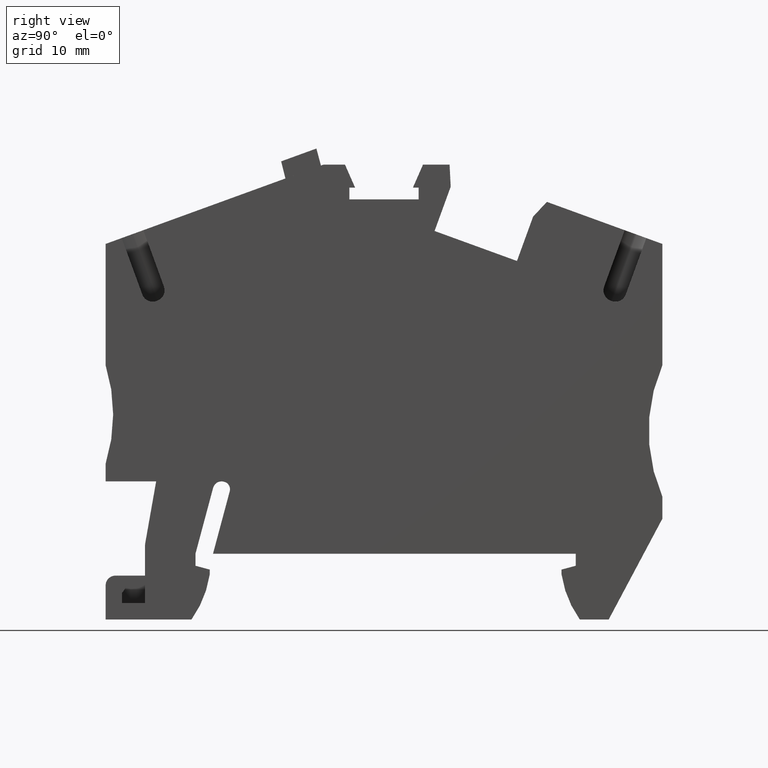
[diagram: clean part render]
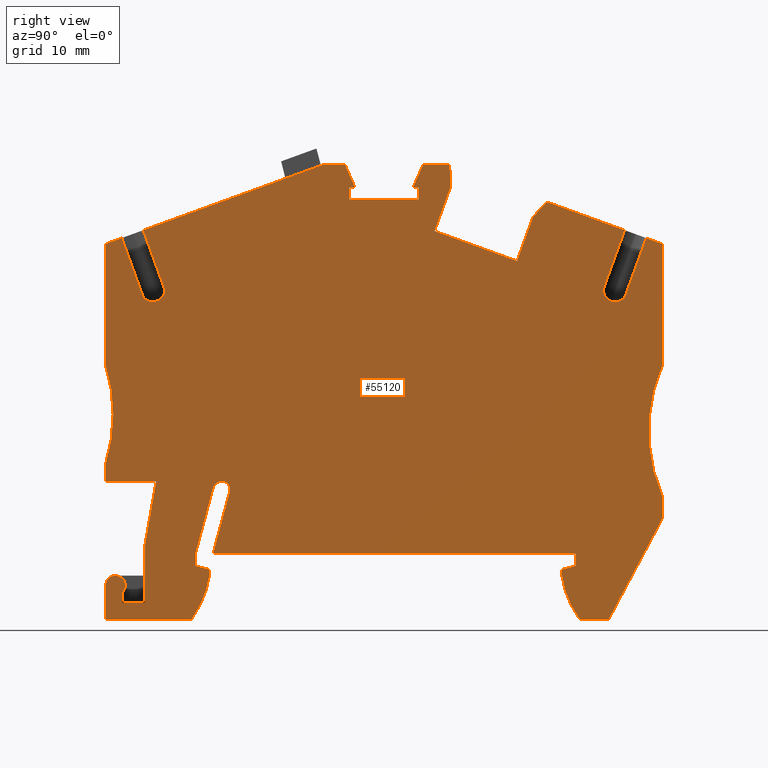
[diagram: same view with one face highlighted and labeled with its STEP entity id]
A machine part, right view. The second image highlights one B-rep face of the part: STEP entity #55120.
In plain terms, the highlighted planar face has unit normal (-1, -0, 0).
Its self-contained STEP definition (entity closure, byte-faithful):
#100=CARTESIAN_POINT('',(-1.29999999999927,-1.4483339501603,
-1.42589696079272E-10));
#110=VERTEX_POINT('',#100);
#280=CARTESIAN_POINT('',(0.,-1.10000000000036,-1.42495430504103E-10));
#290=VERTEX_POINT('',#280);
#320=CARTESIAN_POINT('',(0.,-1.10000000000036,0.));
#330=DIRECTION('',(0.965925826289129,0.258819045102296,0.));
#340=VECTOR('',#330,1.);
#350=LINE('',#320,#340);
#360=EDGE_CURVE('',#110,#290,#350,.T.);
#1120=CARTESIAN_POINT('',(-39.3000000000014,0.774101334896841,
-1.38149359674055E-10));
#1130=VERTEX_POINT('',#1120);
#1310=CARTESIAN_POINT('',(-39.2848077530129,0.947749512562956,
-1.38049892836044E-10));
#1320=VERTEX_POINT('',#1310);
#1350=CARTESIAN_POINT('',(-38.3000000000005,0.774101334896841,0.));
#1360=DIRECTION('',(0.,0.,1.));
#1370=DIRECTION('',(1.,0.,0.));
#1380=AXIS2_PLACEMENT_3D('',#1350,#1360,#1370);
#1390=CIRCLE('',#1380,0.999999999998985);
#1400=EDGE_CURVE('',#1320,#1130,#1390,.T.);
#2750=CARTESIAN_POINT('',(-39.4598647320137,29.5152964901606,
-1.21465675621189E-10));
#2760=VERTEX_POINT('',#2750);
#2790=CARTESIAN_POINT('',(-28.7171753540537,0.,-1.39475972340932E-10));
#2800=DIRECTION('',(0.342020143325669,-0.939692620785908,
-5.73402436643278E-13));
#2810=VECTOR('',#2800,1.);
#2820=LINE('',#2790,#2810);
#2830=CARTESIAN_POINT('',(-37.5806273772337,24.3521342921046,
-1.24616248180409E-10));
#2840=VERTEX_POINT('',#2830);
#2850=EDGE_CURVE('',#2760,#2840,#2820,.T.);
#7400=CARTESIAN_POINT('',(-2.64092282074495,32.099771799215,
-1.23017726816129E-10));
#7410=VERTEX_POINT('',#7400);
#7460=CARTESIAN_POINT('',(-32.4815657489445,0.,-1.39163807279348E-10));
#7470=DIRECTION('',(0.680864038377509,0.73240983147707,
3.68399755146243E-13));
#7480=VECTOR('',#7470,1.);
#7490=LINE('',#7460,#7480);
#7500=CARTESIAN_POINT('',(-3.89752594864123,30.7480357208503,
-1.23699953515012E-10));
#7510=VERTEX_POINT('',#7500);
#7520=EDGE_CURVE('',#7510,#7410,#7490,.T.);
#10200=CARTESIAN_POINT('',(0.,0.,-1.41857366902207E-10));
#10210=DIRECTION('',(-1.,0.,8.29257937772377E-14));
#10220=VECTOR('',#10210,1.);
#10230=LINE('',#10200,#10220);
#10240=CARTESIAN_POINT('',(0.,0.,-1.41857366902207E-10));
#10250=VERTEX_POINT('',#10240);
#10260=CARTESIAN_POINT('',(-33.0999999999996,0.,-1.3911252312818E-10));
#10270=VERTEX_POINT('',#10260);
#10280=EDGE_CURVE('',#10250,#10270,#10230,.T.);
#12500=CARTESIAN_POINT('',(6.19595393837592,0.,-1.42371171300754E-10));
#12510=DIRECTION('',(-0.470025375689051,-0.882652902452808,
-4.72982764065932E-13));
#12520=VECTOR('',#12510,1.);
#12530=LINE('',#12500,#12520);
#12540=CARTESIAN_POINT('',(7.89999999999907,3.19999999999997,
-1.40656403422231E-10));
#12550=VERTEX_POINT('',#12540);
#12560=CARTESIAN_POINT('',(3.00086757283249,-6.,-1.45586563147137E-10));
#12570=VERTEX_POINT('',#12560);
#12580=EDGE_CURVE('',#12550,#12570,#12530,.T.);
#12970=CARTESIAN_POINT('',(-5.45900074409302,0.,-1.41404674932272E-10));
#12980=DIRECTION('',(0.402320578210114,-0.915498854367759,
-5.64381874568198E-13));
#12990=VECTOR('',#12980,1.);
#13000=LINE('',#12970,#12990);
#13010=CARTESIAN_POINT('',(-21.0596543749732,35.5,-1.19519823354814E-10)
);
#13020=VERTEX_POINT('',#13010);
#13030=CARTESIAN_POINT('',(-20.1346015329186,33.3950000000041,
-1.20817502582151E-10));
#13040=VERTEX_POINT('',#13030);
#13050=EDGE_CURVE('',#13020,#13040,#13000,.T.);
#15940=CARTESIAN_POINT('',(-31.5717121730659,5.70364781871285,
-1.35769650966269E-10));
#15950=VERTEX_POINT('',#15940);
#15980=CARTESIAN_POINT('',(-33.0999999999996,0.,-1.3911252312818E-10));
#15990=DIRECTION('',(0.258819045102212,0.965925826289151,
5.38791233850588E-13));
#16000=VECTOR('',#15990,1.);
#16010=LINE('',#15980,#16000);
#16020=EDGE_CURVE('',#10270,#15950,#16010,.T.);
#17270=CARTESIAN_POINT('',(0.,0.,0.));
#17280=DIRECTION('',(0.,1.,0.));
#17290=VECTOR('',#17280,1.);
#17300=LINE('',#17270,#17290);
#17310=EDGE_CURVE('',#290,#10250,#17300,.T.);
#17540=CARTESIAN_POINT('',(4.45986473201246,29.5152964901623,
-1.25107999446172E-10));
#17550=VERTEX_POINT('',#17540);
#17700=CARTESIAN_POINT('',(2.58062737722511,24.3521342920906,
-1.27946854579047E-10));
#17710=VERTEX_POINT('',#17700);
#17740=CARTESIAN_POINT('',(-6.28282464594988,0.,-1.41336358681278E-10));
#17750=DIRECTION('',(-0.342020143325669,-0.939692620785908,
-5.16697795660548E-13));
#17760=VECTOR('',#17750,1.);
#17770=LINE('',#17740,#17760);
#17780=EDGE_CURVE('',#17550,#17710,#17770,.T.);
#20130=CARTESIAN_POINT('',(-42.8999999999979,17.1999999999899,
-1.28322855846794E-10));
#20140=VERTEX_POINT('',#20130);
#20290=CARTESIAN_POINT('',(-42.9000000000009,28.2631896507639,
-1.21905223592938E-10));
#20300=VERTEX_POINT('',#20290);
#20330=CARTESIAN_POINT('',(-42.8999999999933,0.,-1.38299850349164E-10));
#20340=DIRECTION('',(2.67952326993282E-13,-1.,-5.80057819905538E-13));
#20350=VECTOR('',#20340,1.);
#20360=LINE('',#20330,#20350);
#20370=EDGE_CURVE('',#20300,#20140,#20360,.T.);
#21560=CARTESIAN_POINT('',(-38.1782998554556,23.070421527716,
-1.25309132256178E-10));
#21570=VERTEX_POINT('',#21560);
#22590=CARTESIAN_POINT('',(-38.2881634903552,6.600000000004,
-1.34853904179335E-10));
#22600=VERTEX_POINT('',#22590);
#22750=CARTESIAN_POINT('',(-42.9,6.600000000004,-1.34471468737784E-10));
#22760=VERTEX_POINT('',#22750);
#22790=CARTESIAN_POINT('',(0.,6.600000000004,-1.38028985290828E-10));
#22800=DIRECTION('',(-1.,0.,8.29257937772377E-14));
#22810=VECTOR('',#22800,1.);
#22820=LINE('',#22790,#22810);
#22830=EDGE_CURVE('',#22600,#22760,#22820,.T.);
#25860=CARTESIAN_POINT('',(-42.9000000000004,-6.,-1.41780197268596E-10))
;
#25870=VERTEX_POINT('',#25860);
#26020=CARTESIAN_POINT('',(-42.9,-2.89999999999925,-1.40056651241288E-10
));
#26030=VERTEX_POINT('',#26020);
#26060=CARTESIAN_POINT('',(-42.8999999999978,0.,-1.38299850349163E-10));
#26070=DIRECTION('',(4.33092715129891E-13,1.,5.8005781990548E-13));
#26080=VECTOR('',#26070,1.);
#26090=LINE('',#26060,#26080);
#26100=EDGE_CURVE('',#25870,#26030,#26090,.T.);
#28120=CARTESIAN_POINT('',(-38.5203199980197,24.0101141487791,
-1.24736602610164E-10));
#28130=DIRECTION('',(-1.95827564400544E-13,5.38964936002669E-13,-1.));
#28140=DIRECTION('',(0.,-1.,-5.38964936002669E-13));
#28150=AXIS2_PLACEMENT_3D('',#28120,#28130,#28140);
#28160=CIRCLE('',#28150,1.);
#28170=EDGE_CURVE('',#2840,#21570,#28160,.T.);
#28350=CARTESIAN_POINT('',(0.,35.5,-1.21265314295561E-10));
#28360=DIRECTION('',(1.,0.,-8.29257937772377E-14));
#28370=VECTOR('',#28360,1.);
#28380=LINE('',#28350,#28370);
#28390=CARTESIAN_POINT('',(-13.9403456250286,35.5,-1.2011015492028E-10))
;
#28400=VERTEX_POINT('',#28390);
#28410=CARTESIAN_POINT('',(-11.5175781191445,35.5000000000002,
-1.20310264351358E-10));
#28420=VERTEX_POINT('',#28410);
#28430=EDGE_CURVE('',#28400,#28420,#28380,.T.);
#28870=CARTESIAN_POINT('',(-38.2722691167721,23.0362195136608,
-9.82363376605802E-13));
#28880=VERTEX_POINT('',#28870);
#33410=CARTESIAN_POINT('',(-42.9,8.20000000000002,-1.33543376225938E-10)
);
#33420=VERTEX_POINT('',#33410);
#33450=CARTESIAN_POINT('',(-42.9,0.,-1.38299850349163E-10));
#33460=DIRECTION('',(0.,1.,5.80057819905516E-13));
#33470=VECTOR('',#33460,1.);
#33480=LINE('',#33450,#33470);
#33490=EDGE_CURVE('',#22760,#33420,#33480,.T.);
#33720=CARTESIAN_POINT('',(7.89999999999907,17.1999999999987,
-1.32535486170673E-10));
#33730=VERTEX_POINT('',#33720);
#33890=CARTESIAN_POINT('',(7.89999999999906,5.19999999999878,
-1.37155874271251E-10));
#33900=VERTEX_POINT('',#33890);
#33930=CARTESIAN_POINT('',(21.6477270848666,11.1999999999987,0.));
#33940=DIRECTION('',(0.,0.,1.));
#33950=DIRECTION('',(1.,0.,0.));
#33960=AXIS2_PLACEMENT_3D('',#33930,#33940,#33950);
#33970=CIRCLE('',#33960,15.);
#33980=EDGE_CURVE('',#33730,#33900,#33970,.T.);
#35760=CARTESIAN_POINT('',(-41.4000000000009,-4.49999999999809,
-1.41034499229403E-10));
#35770=VERTEX_POINT('',#35760);
#35940=CARTESIAN_POINT('',(-39.3000000000014,-4.49999999999809,
-1.41208643396335E-10));
#35950=VERTEX_POINT('',#35940);
#35980=CARTESIAN_POINT('',(0.,-4.4999999999981,-1.44469824703714E-10));
#35990=DIRECTION('',(1.,-1.11022302462522E-16,-8.29257937772378E-14));
#36000=VECTOR('',#35990,1.);
#36010=LINE('',#35980,#36000);
#36020=EDGE_CURVE('',#35770,#35950,#36010,.T.);
#36230=CARTESIAN_POINT('',(-34.6999999999999,-1.10000000000033,
-1.39617323468595E-10));
#36240=VERTEX_POINT('',#36230);
#36410=CARTESIAN_POINT('',(-33.3999999999998,-1.44833395016027,
-1.39927202635948E-10));
#36420=VERTEX_POINT('',#36410);
#36450=CARTESIAN_POINT('',(0.,-10.3978369773451,0.));
#36460=DIRECTION('',(0.965925826289174,-0.258819045102127,0.));
#36470=VECTOR('',#36460,1.);
#36480=LINE('',#36450,#36470);
#36490=EDGE_CURVE('',#36240,#36420,#36480,.T.);
#36720=CARTESIAN_POINT('',(3.17829985773621,23.0704215268684,
-1.28738766468E-10));
#36730=VERTEX_POINT('',#36720);
#38040=CARTESIAN_POINT('',(-41.3999999999995,-3.57082039324835,
-1.40056651241288E-10));
#38050=VERTEX_POINT('',#38040);
#38080=CARTESIAN_POINT('',(-42.0000000000004,-2.89999999999964,0.));
#38090=DIRECTION('',(0.,0.,1.));
#38100=DIRECTION('',(1.,0.,0.));
#38110=AXIS2_PLACEMENT_3D('',#38080,#38090,#38100);
#38120=CIRCLE('',#38110,0.899999999999636);
#38130=EDGE_CURVE('',#38050,#26030,#38120,.T.);
#41780=CARTESIAN_POINT('',(7.89999999999907,28.2631896507653,
-1.26118196500648E-10));
#41790=VERTEX_POINT('',#41780);
#41820=CARTESIAN_POINT('',(4.45986473201246,29.5152964901623,0.));
#41830=DIRECTION('',(0.939692620785863,-0.342020143325795,
-1.29589460855335E-12));
#41840=VECTOR('',#41830,1.);
#41850=LINE('',#41820,#41840);
#41860=CARTESIAN_POINT('',(6.43321923566216,28.7970541891783,
-1.25688230080437E-10));
#41870=VERTEX_POINT('',#41860);
#41880=EDGE_CURVE('',#41870,#41790,#41850,.T.);
#42140=CARTESIAN_POINT('',(0.,31.1385545014691,-1.23795204863075E-10));
#42150=DIRECTION('',(0.939692620785863,-0.342020143325795,
-2.76334510829201E-13));
#42160=VECTOR('',#42150,1.);
#42170=LINE('',#42140,#42160);
#42180=EDGE_CURVE('',#7410,#17550,#42170,.T.);
#43010=CARTESIAN_POINT('',(-14.8653984670832,33.3950000000041,
-1.21254415200901E-10));
#43020=VERTEX_POINT('',#43010);
#43070=CARTESIAN_POINT('',(0.,33.3950000000041,-1.22486336006459E-10));
#43080=DIRECTION('',(1.,0.,-8.29257937772377E-14));
#43090=VECTOR('',#43080,1.);
#43100=LINE('',#43070,#43090);
#43110=CARTESIAN_POINT('',(-14.3374999999996,33.3950000000041,
-1.21297387438178E-10));
#43120=VERTEX_POINT('',#43110);
#43130=EDGE_CURVE('',#43020,#43120,#43100,.T.);
#43480=CARTESIAN_POINT('',(-32.088008884186,6.56632503169182,
-1.35769650966269E-10));
#43490=VERTEX_POINT('',#43480);
#43670=CARTESIAN_POINT('',(-33.0904144006021,6.00705523608288,
-1.35813062798866E-10));
#43680=VERTEX_POINT('',#43670);
#43710=CARTESIAN_POINT('',(-32.3176737395706,5.80000000000109,0.));
#43720=DIRECTION('',(0.,0.,1.));
#43730=DIRECTION('',(1.,0.,0.));
#43740=AXIS2_PLACEMENT_3D('',#43710,#43720,#43730);
#43750=CIRCLE('',#43740,0.800000000000103);
#43760=EDGE_CURVE('',#43490,#43680,#43750,.T.);
#43920=CARTESIAN_POINT('',(-39.553981880959,23.6338919913267,
-1.24868297693306E-10));
#43930=VERTEX_POINT('',#43920);
#43970=CARTESIAN_POINT('',(-38.614289260173,23.9759121346521,
-1.2474783099109E-10));
#43980=DIRECTION('',(8.29257937772377E-14,-5.80057819905516E-13,1.));
#43990=DIRECTION('',(0.939692620785946,0.342020143325567,
1.20466702215913E-13));
#44000=AXIS2_PLACEMENT_3D('',#43970,#43980,#43990);
#44010=CIRCLE('',#44000,1.);
#44020=EDGE_CURVE('',#43930,#28880,#44010,.T.);
#44860=CARTESIAN_POINT('',(0.358943653132053,-6.,-1.45367479508997E-10))
;
#44870=VERTEX_POINT('',#44860);
#45030=CARTESIAN_POINT('',(-1.30000000000111,-1.89999999999953,
-1.42809678395399E-10));
#45040=VERTEX_POINT('',#45030);
#45070=CARTESIAN_POINT('',(8.09397267937675,-0.48462821170142,
-1.42809678395399E-10));
#45080=DIRECTION('',(0.,0.,1.));
#45090=DIRECTION('',(1.,0.,0.));
#45100=AXIS2_PLACEMENT_3D('',#45070,#45080,#45090);
#45110=CIRCLE('',#45100,9.50000000000041);
#45120=EDGE_CURVE('',#45040,#44870,#45110,.T.);
#47310=CARTESIAN_POINT('',(-15.0888957131847,0.,0.));
#47320=DIRECTION('',(0.34202014332567,0.939692620785908,0.));
#47330=VECTOR('',#47320,1.);
#47340=LINE('',#47310,#47330);
#47350=CARTESIAN_POINT('',(-5.3682125649411,26.7073574514723,
-1.25921634687376E-10));
#47360=VERTEX_POINT('',#47350);
#47370=EDGE_CURVE('',#47360,#7510,#47340,.T.);
#48110=CARTESIAN_POINT('',(-34.6999999999998,9.09561053310533E-12,
-1.38979841858131E-10));
#48120=VERTEX_POINT('',#48110);
#48150=CARTESIAN_POINT('',(-34.7000000000023,0.,0.));
#48160=DIRECTION('',(-0.258819045102824,-0.965925826288987,0.));
#48170=VECTOR('',#48160,1.);
#48180=LINE('',#48150,#48170);
#48190=EDGE_CURVE('',#43680,#48120,#48180,.T.);
#49210=CARTESIAN_POINT('',(-14.3374999999996,0.,0.));
#49220=DIRECTION('',(0.,-1.,0.));
#49230=VECTOR('',#49220,1.);
#49240=LINE('',#49210,#49230);
#49250=CARTESIAN_POINT('',(-14.3374999999996,32.3250000000044,
-1.21918049305477E-10));
#49260=VERTEX_POINT('',#49250);
#49270=EDGE_CURVE('',#43120,#49260,#49240,.T.);
#50980=CARTESIAN_POINT('',(0.,35.5,-1.21265314295561E-10));
#50990=DIRECTION('',(-1.,0.,8.29257937772377E-14));
#51000=VECTOR('',#50990,1.);
#51010=LINE('',#50980,#51000);
#51020=CARTESIAN_POINT('',(-23.0170269765991,35.5,-1.19356425257546E-10)
);
#51030=VERTEX_POINT('',#51020);
#51040=EDGE_CURVE('',#13020,#51030,#51010,.T.);
#51550=CARTESIAN_POINT('',(-20.6625000000022,32.3250000000044,
-1.21393543659836E-10));
#51560=VERTEX_POINT('',#51550);
#51590=CARTESIAN_POINT('',(-20.6625000000022,0.,0.));
#51600=DIRECTION('',(0.,1.,0.));
#51610=VECTOR('',#51600,1.);
#51620=LINE('',#51590,#51610);
#51630=CARTESIAN_POINT('',(-20.6625000000022,33.3950000000041,
-1.20772881792537E-10));
#51640=VERTEX_POINT('',#51630);
#51650=EDGE_CURVE('',#51560,#51640,#51620,.T.);
#52190=CARTESIAN_POINT('',(7.89999999999907,0.,-1.42512480673047E-10));
#52200=DIRECTION('',(0.,-1.,-5.80057819905516E-13));
#52210=VECTOR('',#52200,1.);
#52220=LINE('',#52190,#52210);
#52230=EDGE_CURVE('',#33900,#12550,#52220,.T.);
#52480=CARTESIAN_POINT('',(-39.4519215630309,0.,-1.38585784990555E-10));
#52490=DIRECTION('',(0.173648177666793,0.984807753012232,
5.56846235788555E-13));
#52500=VECTOR('',#52490,1.);
#52510=LINE('',#52480,#52500);
#52520=EDGE_CURVE('',#1320,#22600,#52510,.T.);
#52900=CARTESIAN_POINT('',(-33.3999999999996,-1.90000000000011,
-1.40189755247867E-10));
#52910=VERTEX_POINT('',#52900);
#52940=CARTESIAN_POINT('',(-33.3999999999996,0.,0.));
#52950=DIRECTION('',(0.,-1.,0.));
#52960=VECTOR('',#52950,1.);
#52970=LINE('',#52940,#52960);
#52980=EDGE_CURVE('',#36420,#52910,#52970,.T.);
#53100=CARTESIAN_POINT('',(-23.9915255108333,23.6847447455093,
-1.26129329203195E-10));
#53110=DIRECTION('',(-8.29257937772377E-14,5.80057819905516E-13,-1.));
#53120=DIRECTION('',(-0.939692620785909,-0.342020143325669,
-1.20466702215975E-13));
#53130=AXIS2_PLACEMENT_3D('',#53100,#53110,#53120);
#53140=PLANE('',#53130);
#53150=ORIENTED_EDGE('',*,*,#44020,.F.);
#53160=CARTESIAN_POINT('',(0.,36.9661862699958,-1.20415659773381E-10));
#53170=DIRECTION('',(0.939692620785874,0.342020143325763,
1.20445320384141E-13));
#53180=VECTOR('',#53170,1.);
#53190=LINE('',#53160,#53180);
#53200=EDGE_CURVE('',#28880,#21570,#53190,.T.);
#53210=ORIENTED_EDGE('',*,*,#53200,.F.);
#53220=ORIENTED_EDGE('',*,*,#28170,.T.);
#53230=ORIENTED_EDGE('',*,*,#2850,.T.);
#53240=CARTESIAN_POINT('',(-72.9627475263565,17.3212443909068,
2.39981359723559E-11));
#53250=DIRECTION('',(-0.939692620785866,-0.342020143325785,
5.15663900468866E-13));
#53260=VECTOR('',#53250,1.);
#53270=LINE('',#53240,#53260);
#53280=EDGE_CURVE('',#51030,#2760,#53270,.T.);
#53290=ORIENTED_EDGE('',*,*,#53280,.T.);
#53300=ORIENTED_EDGE('',*,*,#51040,.T.);
#53310=ORIENTED_EDGE('',*,*,#13050,.F.);
#53320=CARTESIAN_POINT('',(0.,33.3950000000041,-1.22486336006459E-10));
#53330=DIRECTION('',(-1.,0.,8.29257937772377E-14));
#53340=VECTOR('',#53330,1.);
#53350=LINE('',#53320,#53340);
#53360=EDGE_CURVE('',#13040,#51640,#53350,.T.);
#53370=ORIENTED_EDGE('',*,*,#53360,.F.);
#53380=ORIENTED_EDGE('',*,*,#51650,.T.);
#53390=CARTESIAN_POINT('',(0.,32.3250000000044,0.));
#53400=DIRECTION('',(-1.,0.,0.));
#53410=VECTOR('',#53400,1.);
#53420=LINE('',#53390,#53410);
#53430=EDGE_CURVE('',#49260,#51560,#53420,.T.);
#53440=ORIENTED_EDGE('',*,*,#53430,.T.);
#53450=ORIENTED_EDGE('',*,*,#49270,.T.);
#53460=ORIENTED_EDGE('',*,*,#43130,.T.);
#53470=CARTESIAN_POINT('',(-29.5409992559088,0.,-1.39407656089937E-10));
#53480=DIRECTION('',(-0.402320578210114,-0.915498854367759,
-4.97657470788226E-13));
#53490=VECTOR('',#53480,1.);
#53500=LINE('',#53470,#53490);
#53510=EDGE_CURVE('',#28400,#43020,#53500,.T.);
#53520=ORIENTED_EDGE('',*,*,#53510,.T.);
#53530=ORIENTED_EDGE('',*,*,#28430,.F.);
#53540=CARTESIAN_POINT('',(-9.71226901384835,0.,-1.41051969284855E-10));
#53550=DIRECTION('',(0.0507881482325711,-0.99870944923892,
-5.83519343955174E-13));
#53560=VECTOR('',#53550,1.);
#53570=LINE('',#53540,#53560);
#53580=CARTESIAN_POINT('',(-11.4150669149199,33.484196867286,
-1.21488044457915E-10));
#53590=VERTEX_POINT('',#53580);
#53600=EDGE_CURVE('',#28420,#53590,#53570,.T.);
#53610=ORIENTED_EDGE('',*,*,#53600,.F.);
#53620=CARTESIAN_POINT('',(-23.6023178930393,0.,0.));
#53630=DIRECTION('',(0.342020143328586,0.939692620784847,0.));
#53640=VECTOR('',#53630,1.);
#53650=LINE('',#53620,#53640);
#53660=CARTESIAN_POINT('',(-12.8857535311788,29.4435185980595,
-1.23710362601836E-10));
#53670=VERTEX_POINT('',#53660);
#53680=EDGE_CURVE('',#53670,#53590,#53650,.T.);
#53690=ORIENTED_EDGE('',*,*,#53680,.T.);
#53700=CARTESIAN_POINT('',(0.,24.7534878666198,0.));
#53710=DIRECTION('',(0.939692620785908,-0.342020143325669,0.));
#53720=VECTOR('',#53710,1.);
#53730=LINE('',#53700,#53720);
#53740=EDGE_CURVE('',#53670,#47360,#53730,.T.);
#53750=ORIENTED_EDGE('',*,*,#53740,.F.);
#53760=ORIENTED_EDGE('',*,*,#47370,.F.);
#53770=ORIENTED_EDGE('',*,*,#7520,.F.);
#53780=ORIENTED_EDGE('',*,*,#42180,.F.);
#53790=ORIENTED_EDGE('',*,*,#17780,.F.);
#53800=CARTESIAN_POINT('',(3.52031999801097,24.0101141487648,
-1.28222037763576E-10));
#53810=DIRECTION('',(-1.76426614137704E-13,-4.85661263239102E-13,1.));
#53820=DIRECTION('',(0.,1.,4.85661263239102E-13));
#53830=AXIS2_PLACEMENT_3D('',#53800,#53810,#53820);
#53840=CIRCLE('',#53830,1.);
#53850=EDGE_CURVE('',#17710,#36730,#53840,.T.);
#53860=ORIENTED_EDGE('',*,*,#53850,.F.);
#53870=CARTESIAN_POINT('',(0.,24.2272280706582,-1.27803706881861E-10));
#53880=DIRECTION('',(-0.939692620785782,0.342020143326016,
2.76320633041641E-13));
#53890=VECTOR('',#53880,1.);
#53900=LINE('',#53870,#53890);
#53910=CARTESIAN_POINT('',(3.27226911676348,23.0362195136464,
-7.990520138126E-13));
#53920=VERTEX_POINT('',#53910);
#53930=EDGE_CURVE('',#53920,#36730,#53900,.T.);
#53940=ORIENTED_EDGE('',*,*,#53930,.T.);
#53950=CARTESIAN_POINT('',(3.61428926008894,23.9759121344324,
-1.28249669385095E-10));
#53960=DIRECTION('',(1.76426614137705E-13,4.85661263239102E-13,-1.));
#53970=DIRECTION('',(0.,-1.,-4.85661263239102E-13));
#53980=AXIS2_PLACEMENT_3D('',#53950,#53960,#53970);
#53990=CIRCLE('',#53980,1.);
#54000=CARTESIAN_POINT('',(4.55398188087481,23.6338919911066,
-1.28527085213312E-10));
#54010=VERTEX_POINT('',#54000);
#54020=EDGE_CURVE('',#54010,#53920,#53990,.T.);
#54030=ORIENTED_EDGE('',*,*,#54020,.T.);
#54040=CARTESIAN_POINT('',(-4.04805132374381,0.,-1.41521679032934E-10));
#54050=DIRECTION('',(-0.342020143325457,-0.939692620785985,
-5.16697795660548E-13));
#54060=VECTOR('',#54050,1.);
#54070=LINE('',#54040,#54060);
#54080=EDGE_CURVE('',#41870,#54010,#54070,.T.);
#54090=ORIENTED_EDGE('',*,*,#54080,.T.);
#54100=ORIENTED_EDGE('',*,*,#41880,.F.);
#54110=CARTESIAN_POINT('',(7.89999999999907,0.,0.));
#54120=DIRECTION('',(-5.55111512312578E-17,-1.,0.));
#54130=VECTOR('',#54120,1.);
#54140=LINE('',#54110,#54130);
#54150=EDGE_CURVE('',#41790,#33730,#54140,.T.);
#54160=ORIENTED_EDGE('',*,*,#54150,.F.);
#54170=ORIENTED_EDGE('',*,*,#33980,.F.);
#54180=ORIENTED_EDGE('',*,*,#52230,.F.);
#54190=ORIENTED_EDGE('',*,*,#12580,.F.);
#54200=CARTESIAN_POINT('',(0.,-6.,-1.4533771382164E-10));
#54210=DIRECTION('',(-1.,0.,8.29257937772377E-14));
#54220=VECTOR('',#54210,1.);
#54230=LINE('',#54200,#54220);
#54240=EDGE_CURVE('',#12570,#44870,#54230,.T.);
#54250=ORIENTED_EDGE('',*,*,#54240,.F.);
#54260=ORIENTED_EDGE('',*,*,#45120,.T.);
#54270=CARTESIAN_POINT('',(-1.29999999999344,0.,0.));
#54280=DIRECTION('',(4.02728831222296E-12,1.,0.));
#54290=VECTOR('',#54280,1.);
#54300=LINE('',#54270,#54290);
#54310=EDGE_CURVE('',#45040,#110,#54300,.T.);
#54320=ORIENTED_EDGE('',*,*,#54310,.F.);
#54330=ORIENTED_EDGE('',*,*,#360,.F.);
#54340=ORIENTED_EDGE('',*,*,#17310,.F.);
#54350=ORIENTED_EDGE('',*,*,#10280,.F.);
#54360=ORIENTED_EDGE('',*,*,#16020,.F.);
#54370=CARTESIAN_POINT('',(-32.2478602514666,5.88482115028273,0.));
#54380=DIRECTION('',(0.,0.,1.));
#54390=DIRECTION('',(1.,0.,0.));
#54400=AXIS2_PLACEMENT_3D('',#54370,#54380,#54390);
#54410=CIRCLE('',#54400,0.699999999997949);
#54420=EDGE_CURVE('',#15950,#43490,#54410,.T.);
#54430=ORIENTED_EDGE('',*,*,#54420,.F.);
#54440=ORIENTED_EDGE('',*,*,#43760,.F.);
#54450=ORIENTED_EDGE('',*,*,#48190,.F.);
#54460=CARTESIAN_POINT('',(-34.6999999999998,0.,0.));
#54470=DIRECTION('',(0.,-1.,0.));
#54480=VECTOR('',#54470,1.);
#54490=LINE('',#54460,#54480);
#54500=EDGE_CURVE('',#48120,#36240,#54490,.T.);
#54510=ORIENTED_EDGE('',*,*,#54500,.F.);
#54520=ORIENTED_EDGE('',*,*,#36490,.F.);
#54530=ORIENTED_EDGE('',*,*,#52980,.F.);
#54540=CARTESIAN_POINT('',(-42.7939726793766,-0.48462821170142,
-1.38589755132832E-10));
#54550=DIRECTION('',(0.,0.,1.));
#54560=DIRECTION('',(1.,0.,0.));
#54570=AXIS2_PLACEMENT_3D('',#54540,#54550,#54560);
#54580=CIRCLE('',#54570,9.49999999999992);
#54590=CARTESIAN_POINT('',(-35.0589436531325,-6.,-1.42430423090212E-10))
;
#54600=VERTEX_POINT('',#54590);
#54610=EDGE_CURVE('',#54600,#52910,#54580,.T.);
#54620=ORIENTED_EDGE('',*,*,#54610,.T.);
#54630=CARTESIAN_POINT('',(0.,-6.,-1.4533771382164E-10));
#54640=DIRECTION('',(-1.,0.,8.29257937772377E-14));
#54650=VECTOR('',#54640,1.);
#54660=LINE('',#54630,#54650);
#54670=EDGE_CURVE('',#54600,#25870,#54660,.T.);
#54680=ORIENTED_EDGE('',*,*,#54670,.F.);
#54690=ORIENTED_EDGE('',*,*,#26100,.F.);
#54700=ORIENTED_EDGE('',*,*,#38130,.T.);
#54710=CARTESIAN_POINT('',(-41.4000000000009,0.,-1.38426436651762E-10));
#54720=DIRECTION('',(-1.11022302462516E-16,-1.,-5.80057819905516E-13));
#54730=VECTOR('',#54720,1.);
#54740=LINE('',#54710,#54730);
#54750=EDGE_CURVE('',#38050,#35770,#54740,.T.);
#54760=ORIENTED_EDGE('',*,*,#54750,.F.);
#54770=ORIENTED_EDGE('',*,*,#36020,.F.);
#54780=CARTESIAN_POINT('',(-39.3000000000005,0.,-1.38598383206761E-10));
#54790=DIRECTION('',(0.,-1.,-5.80057819905516E-13));
#54800=VECTOR('',#54790,1.);
#54810=LINE('',#54780,#54800);
#54820=EDGE_CURVE('',#1130,#35950,#54810,.T.);
#54830=ORIENTED_EDGE('',*,*,#54820,.T.);
#54840=ORIENTED_EDGE('',*,*,#1400,.T.);
#54850=ORIENTED_EDGE('',*,*,#52520,.F.);
#54860=ORIENTED_EDGE('',*,*,#22830,.F.);
#54870=ORIENTED_EDGE('',*,*,#33490,.F.);
#54880=CARTESIAN_POINT('',(-57.2090880212549,12.6999999999983,
-1.29746523553973E-10));
#54890=DIRECTION('',(0.,0.,1.));
#54900=DIRECTION('',(1.,0.,0.));
#54910=AXIS2_PLACEMENT_3D('',#54880,#54890,#54900);
#54920=CIRCLE('',#54910,15.0000000000001);
#54930=EDGE_CURVE('',#33420,#20140,#54920,.T.);
#54940=ORIENTED_EDGE('',*,*,#54930,.F.);
#54950=ORIENTED_EDGE('',*,*,#20370,.T.);
#54960=CARTESIAN_POINT('',(0.,43.877512700789,-2.68585154117318E-12));
#54970=DIRECTION('',(-0.93969262078596,-0.342020143325528,0.));
#54980=VECTOR('',#54970,1.);
#54990=LINE('',#54960,#54980);
#55000=CARTESIAN_POINT('',(-41.4332192356635,28.7970541891769,
-1.21718628249841E-10));
#55010=VERTEX_POINT('',#55000);
#55020=EDGE_CURVE('',#55010,#20300,#54990,.T.);
#55030=ORIENTED_EDGE('',*,*,#55020,.T.);
#55040=CARTESIAN_POINT('',(-30.9519486762571,0.,-1.39290651989276E-10));
#55050=DIRECTION('',(0.342020143325528,-0.93969262078596,
-5.73402436643278E-13));
#55060=VECTOR('',#55050,1.);
#55070=LINE('',#55040,#55060);
#55080=EDGE_CURVE('',#55010,#43930,#55070,.T.);
#55090=ORIENTED_EDGE('',*,*,#55080,.F.);
#55100=EDGE_LOOP('',(#55090,#55030,#54950,#54940,#54870,#54860,#54850,
#54840,#54830,#54770,#54760,#54700,#54690,#54680,#54620,#54530,#54520,
#54510,#54450,#54440,#54430,#54360,#54350,#54340,#54330,#54320,#54260,
#54250,#54190,#54180,#54170,#54160,#54100,#54090,#54030,#53940,#53860,
#53790,#53780,#53770,#53760,#53750,#53690,#53610,#53530,#53520,#53460,
#53450,#53440,#53380,#53370,#53310,#53300,#53290,#53230,#53220,#53210,
#53150));
#55110=FACE_OUTER_BOUND('',#55100,.T.);
#55120=ADVANCED_FACE('',(#55110),#53140,.F.);